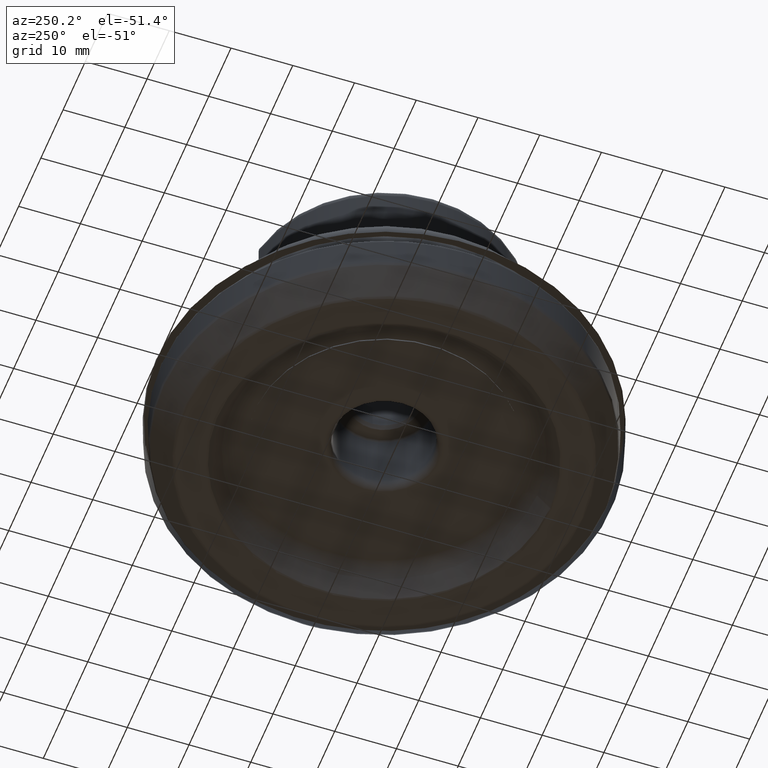
[diagram: clean part render]
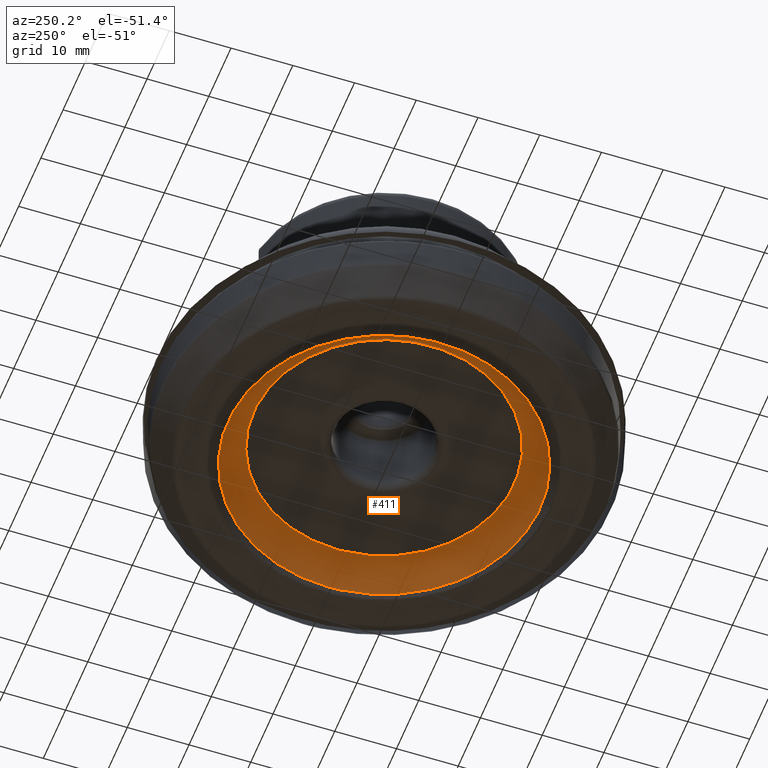
[diagram: same view with one face highlighted and labeled with its STEP entity id]
A machine part, auxiliary view. The second image highlights one B-rep face of the part: STEP entity #411.
In plain terms, the highlighted face is a SurfaceOfRevolution surface.
Its self-contained STEP definition (entity closure, byte-faithful):
#132=SURFACE_OF_REVOLUTION('',#319,#157);
#157=AXIS1_PLACEMENT('',#2091,#1355);
#270=FACE_BOUND('',#550,.T.);
#271=FACE_BOUND('',#551,.T.);
#319=LINE('',#2090,#347);
#347=VECTOR('',#1354,5.97815706176458);
#411=ADVANCED_FACE('',(#270,#271),#132,.F.);
#550=EDGE_LOOP('',(#795));
#551=EDGE_LOOP('',(#796));
#606=CIRCLE('',#1117,25.2642370047568);
#607=CIRCLE('',#1118,21.0933040148837);
#795=ORIENTED_EDGE('',*,*,#974,.T.);
#796=ORIENTED_EDGE('',*,*,#975,.F.);
#878=VERTEX_POINT('',#2082);
#879=VERTEX_POINT('',#2089);
#974=EDGE_CURVE('',#878,#878,#606,.T.);
#975=EDGE_CURVE('',#879,#879,#607,.T.);
#1117=AXIS2_PLACEMENT_3D('',#2081,#1349,#1350);
#1118=AXIS2_PLACEMENT_3D('',#2088,#1352,#1353);
#1349=DIRECTION('',(1.17145536458252E-15,0.,1.));
#1350=DIRECTION('',(1.,0.,-1.17156592947103E-15));
#1352=DIRECTION('',(1.17145536458252E-15,0.,1.));
#1353=DIRECTION('',(1.,0.,-1.15136673925236E-15));
#1354=DIRECTION('',(-0.0861746391405327,-0.705931791107952,-0.703017949893257));
#1355=DIRECTION('',(1.17145536458252E-15,0.,1.));
#2081=CARTESIAN_POINT('',(2.61902842893314E-16,0.,0.223570484042001));
#2082=CARTESIAN_POINT('',(25.2642370047568,0.,0.223570484041972));
#2088=CARTESIAN_POINT('',(5.1852390037275E-15,0.,4.42632230001813));
#2089=CARTESIAN_POINT('',(21.0933040148837,0.,4.42632230001811));
#2090=CARTESIAN_POINT('',(1.94128245971919,-21.0037830073858,4.42632220574363));
#2091=CARTESIAN_POINT('',(0.,0.,0.));